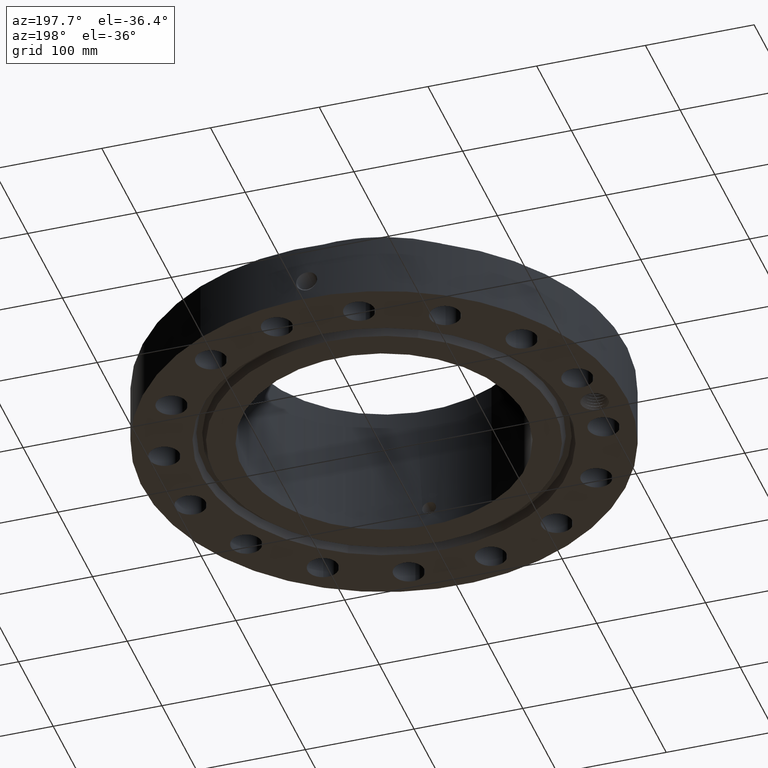
[diagram: clean part render]
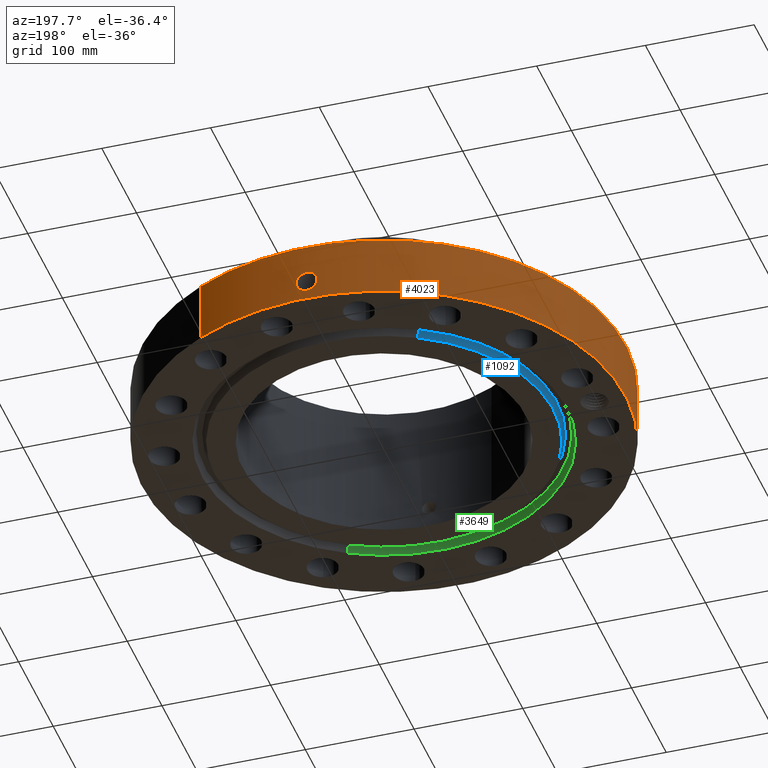
[diagram: same view with three faces highlighted in distinct colors, each labeled with its STEP entity id]
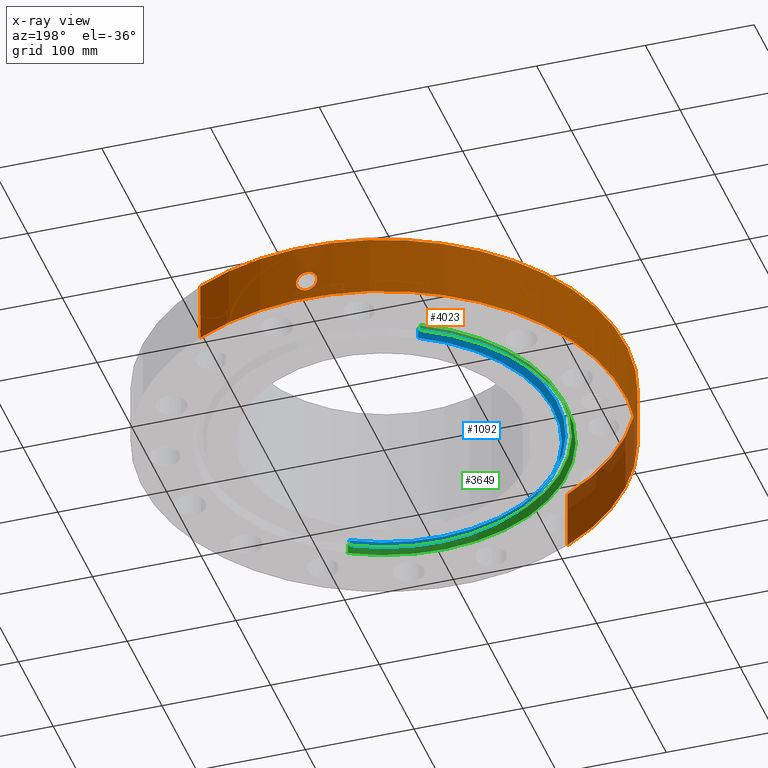
[diagram: x-ray of the same camera — body ghosted, the three highlighted faces saturated]
A machine part, auxiliary view with three faces highlighted in distinct colors.
The next image is the same camera in x-ray (body ghosted, the three faces saturated) — at least one of them is partly hidden behind the body in this view.
Their STEP definitions:

[orange] entity #4023 — the highlighted cylindrical surface (partial cylindrical patch) has radius 222.25 mm, axis along (0, 0, -1).
#2927=AXIS2_PLACEMENT_3D('Circle Axis2P3D',#2925,#2926,$) ;
#3909=AXIS2_PLACEMENT_3D('Cylinder Axis2P3D',#3906,#3907,#3908) ;
#3913=AXIS2_PLACEMENT_3D('Circle Axis2P3D',#3911,#3912,$) ;
#2920=CARTESIAN_POINT('Vertex',(4.1949734628,7.67884741657,2.19300000001)) ;
#2922=CARTESIAN_POINT('Vertex',(-4.1949734628,-7.67884741657,2.19300000001)) ;
#2925=CARTESIAN_POINT('Axis2P3D Location',(0.,0.,2.19300000001)) ;
#3906=CARTESIAN_POINT('Axis2P3D Location',(0.,0.,2.46650000001)) ;
#3911=CARTESIAN_POINT('Axis2P3D Location',(0.,0.,8.39223703654E-016)) ;
#3915=CARTESIAN_POINT('Vertex',(-4.1949734628,-7.67884741657,5.59482469102E-016)) ;
#3917=CARTESIAN_POINT('Vertex',(4.1949734628,7.67884741657,5.59482469102E-016)) ;
#3920=CARTESIAN_POINT('Line Origine',(-4.1949734628,-7.67884741657,1.0965)) ;
#3925=CARTESIAN_POINT('Line Origine',(4.1949734628,7.67884741657,1.0965)) ;
#3937=CARTESIAN_POINT('Control Point',(-0.058108211345,8.74980705138,1.09931275918)) ;
#3938=CARTESIAN_POINT('Control Point',(-0.0391507428815,8.74993294954,1.10247040508)) ;
#3939=CARTESIAN_POINT('Control Point',(-0.0199351377869,8.7499983976,1.10407954749)) ;
#3940=CARTESIAN_POINT('Control Point',(-0.000716211241924,8.74999997072,1.10411849893)) ;
#3941=CARTESIAN_POINT('Vertex',(-0.058094103343,8.74980740847,1.09931539446)) ;
#3943=CARTESIAN_POINT('Vertex',(-0.000716087015016,8.74999997073,1.10411850938)) ;
#3947=CARTESIAN_POINT('Control Point',(-0.0580939951518,8.74980714578,1.09931480802)) ;
#3948=CARTESIAN_POINT('Control Point',(-0.0974875527277,8.74954559383,1.09448302669)) ;
#3949=CARTESIAN_POINT('Control Point',(-0.136129795783,8.74901297423,1.08246986474)) ;
#3950=CARTESIAN_POINT('Control Point',(-0.171610206376,8.74831697744,1.06416185771)) ;
#3951=CARTESIAN_POINT('Vertex',(-0.171610206376,8.74831697744,1.06416185771)) ;
#3955=CARTESIAN_POINT('Control Point',(-0.0302669250486,8.74994765206,0.341133857002)) ;
#3956=CARTESIAN_POINT('Control Point',(-0.0865126194278,8.7497530927,0.348286208239)) ;
#3957=CARTESIAN_POINT('Control Point',(-0.141163769287,8.74911210118,0.365899658823)) ;
#3958=CARTESIAN_POINT('Control Point',(-0.191479456612,8.74808366168,0.393467512369)) ;
#3959=CARTESIAN_POINT('Control Point',(-0.264585195593,8.74612690955,0.452883889332)) ;
#3960=CARTESIAN_POINT('Control Point',(-0.31652846254,8.74430507499,0.529208859659)) ;
#3961=CARTESIAN_POINT('Control Point',(-0.33358370049,8.74365536444,0.561880812788)) ;
#3962=CARTESIAN_POINT('Control Point',(-0.368975035559,8.7422470228,0.654035266205)) ;
#3963=CARTESIAN_POINT('Control Point',(-0.375098719296,8.74194353704,0.752677612261)) ;
#3964=CARTESIAN_POINT('Control Point',(-0.366946086277,8.74231502189,0.81432650908)) ;
#3965=CARTESIAN_POINT('Control Point',(-0.333642995775,8.74374181876,0.912287176442)) ;
#3966=CARTESIAN_POINT('Control Point',(-0.270966480204,8.74586349126,0.992724215462)) ;
#3967=CARTESIAN_POINT('Control Point',(-0.241231379484,8.74676440465,1.02147019833)) ;
#3968=CARTESIAN_POINT('Control Point',(-0.207766158971,8.74760772896,1.04550526857)) ;
#3969=CARTESIAN_POINT('Control Point',(-0.171610206376,8.74831697744,1.06416185771)) ;
#3970=CARTESIAN_POINT('Vertex',(-0.0302669250486,8.74994765206,0.341133857002)) ;
#3974=CARTESIAN_POINT('Control Point',(-0.0302669250486,8.74994765206,0.341133857002)) ;
#3975=CARTESIAN_POINT('Control Point',(-0.0201721120829,8.74998257101,0.340866678134)) ;
#3976=CARTESIAN_POINT('Control Point',(-0.0100722667832,8.75000000318,0.340947102439)) ;
#3977=CARTESIAN_POINT('Control Point',(2.72878355316E-006,8.75000000003,0.341374667804)) ;
#3978=CARTESIAN_POINT('Vertex',(2.72878353736E-006,8.75000000003,0.341374667804)) ;
#3982=CARTESIAN_POINT('Control Point',(0.19328241765,8.74786499139,0.39620888473)) ;
#3983=CARTESIAN_POINT('Control Point',(0.149259962967,8.74883765918,0.371336697881)) ;
#3984=CARTESIAN_POINT('Control Point',(0.101168996965,8.74960564166,0.353535751557)) ;
#3985=CARTESIAN_POINT('Control Point',(0.0508246752608,8.74999998419,0.34353146512)) ;
#3986=CARTESIAN_POINT('Control Point',(2.72878350651E-006,8.75000000003,0.341374667805)) ;
#3987=CARTESIAN_POINT('Vertex',(0.19328241765,8.74786499139,0.39620888473)) ;
#3991=CARTESIAN_POINT('Control Point',(0.19328241765,8.74786499139,0.39620888473)) ;
#3992=CARTESIAN_POINT('Control Point',(0.222320013093,8.74722341123,0.412614795616)) ;
#3993=CARTESIAN_POINT('Control Point',(0.249702833051,8.74649785024,0.431904366732)) ;
#3994=CARTESIAN_POINT('Control Point',(0.275025863018,8.74572454017,0.45390777691)) ;
#3995=CARTESIAN_POINT('Control Point',(0.341959797282,8.74345929158,0.525550661269)) ;
#3996=CARTESIAN_POINT('Control Point',(0.384721449491,8.74158000139,0.615221601559)) ;
#3997=CARTESIAN_POINT('Control Point',(0.399824067785,8.74084549811,0.679596595853)) ;
#3998=CARTESIAN_POINT('Control Point',(0.400741251066,8.74084616897,0.793900913658)) ;
#3999=CARTESIAN_POINT('Control Point',(0.360682759963,8.74259093656,0.898628588562)) ;
#4000=CARTESIAN_POINT('Control Point',(0.336434934745,8.74359787649,0.940095914418)) ;
#4001=CARTESIAN_POINT('Control Point',(0.267541262055,8.74613174516,1.02398894546)) ;
#4002=CARTESIAN_POINT('Control Point',(0.174601905288,8.74851033423,1.07870829018)) ;
#4003=CARTESIAN_POINT('Control Point',(0.11742775766,8.74951483366,1.09858358612)) ;
#4004=CARTESIAN_POINT('Control Point',(0.0582716037326,8.75000017228,1.10701111984)) ;
#4005=CARTESIAN_POINT('Control Point',(-2.5857935541E-005,8.75,1.10415298432)) ;
#4006=CARTESIAN_POINT('Vertex',(-2.58579355373E-005,8.75,1.10415298432)) ;
#4010=CARTESIAN_POINT('Control Point',(-0.000716087004832,8.74999997073,1.10411850936)) ;
#4011=CARTESIAN_POINT('Control Point',(-0.000370996506643,8.74999999898,1.1041360633)) ;
#4012=CARTESIAN_POINT('Control Point',(-2.58579413376E-005,8.75,1.10415298432)) ;
#2926=DIRECTION('Axis2P3D Direction',(0.,0.,-0.0393700787402)) ;
#3907=DIRECTION('Axis2P3D Direction',(0.,0.,-0.0393700787402)) ;
#3908=DIRECTION('Axis2P3D XDirection',(0.0188750212049,0.0345504945626,0.)) ;
#3912=DIRECTION('Axis2P3D Direction',(0.,0.,-0.0393700787402)) ;
#3921=DIRECTION('Vector Direction',(0.,0.,-0.0393700787402)) ;
#3926=DIRECTION('Vector Direction',(0.,0.,-0.0393700787402)) ;
#3922=VECTOR('Line Direction',#3921,0.0393700787402) ;
#3927=VECTOR('Line Direction',#3926,0.0393700787402) ;
#3931=ORIENTED_EDGE('',*,*,#3919,.F.) ;
#3932=ORIENTED_EDGE('',*,*,#3924,.T.) ;
#3933=ORIENTED_EDGE('',*,*,#2929,.T.) ;
#3934=ORIENTED_EDGE('',*,*,#3929,.F.) ;
#4015=ORIENTED_EDGE('',*,*,#3945,.F.) ;
#4016=ORIENTED_EDGE('',*,*,#3953,.T.) ;
#4017=ORIENTED_EDGE('',*,*,#3972,.F.) ;
#4018=ORIENTED_EDGE('',*,*,#3980,.T.) ;
#4019=ORIENTED_EDGE('',*,*,#3989,.F.) ;
#4020=ORIENTED_EDGE('',*,*,#4008,.T.) ;
#4021=ORIENTED_EDGE('',*,*,#4013,.F.) ;
#4022=FACE_BOUND('',#4014,.T.) ;
#4023=ADVANCED_FACE('PartBody',(#3935,#4022),#3910,.T.) ;
#3936=B_SPLINE_CURVE_WITH_KNOTS('',3,(#3937,#3938,#3939,#3940),.UNSPECIFIED.,.F.,.U.,(4,4),(4.38919203658,6.52135752017),.UNSPECIFIED.) ;
#3946=B_SPLINE_CURVE_WITH_KNOTS('',3,(#3947,#3948,#3949,#3950),.UNSPECIFIED.,.F.,.U.,(4,4),(0.,4.4594518444),.UNSPECIFIED.) ;
#3954=B_SPLINE_CURVE_WITH_KNOTS('',5,(#3955,#3956,#3957,#3958,#3959,#3960,#3961,#3962,#3963,#3964,#3965,#3966,#3967,#3968,#3969),.UNSPECIFIED.,.F.,.U.,(6,3,3,3,6),(0.,9.85389436165,16.4310832901,27.5941657904,35.1680977725),.UNSPECIFIED.) ;
#3973=B_SPLINE_CURVE_WITH_KNOTS('',3,(#3974,#3975,#3976,#3977),.UNSPECIFIED.,.F.,.U.,(4,4),(0.,1.05295486204),.UNSPECIFIED.) ;
#3981=B_SPLINE_CURVE_WITH_KNOTS('',4,(#3982,#3983,#3984,#3985,#3986),.UNSPECIFIED.,.F.,.U.,(5,5),(0.,7.08198369672),.UNSPECIFIED.) ;
#3990=B_SPLINE_CURVE_WITH_KNOTS('',5,(#3991,#3992,#3993,#3994,#3995,#3996,#3997,#3998,#3999,#4000,#4001,#4002,#4003,#4004,#4005),.UNSPECIFIED.,.F.,.U.,(6,3,3,3,6),(0.,5.83917278101,17.1007667638,25.5637802496,36.4607847204),.UNSPECIFIED.) ;
#4009=B_SPLINE_CURVE_WITH_KNOTS('',2,(#4010,#4011,#4012),.UNSPECIFIED.,.F.,.U.,(3,3),(1.04630914316,1.07211456638),.UNSPECIFIED.) ;
#2928=CIRCLE('generated circle',#2927,8.75000000003) ;
#3914=CIRCLE('generated circle',#3913,8.75000000003) ;
#3910=CYLINDRICAL_SURFACE('generated cylinder',#3909,8.75000000003) ;
#2929=EDGE_CURVE('',#2923,#2921,#2928,.T.) ;
#3919=EDGE_CURVE('',#3916,#3918,#3914,.T.) ;
#3924=EDGE_CURVE('',#3916,#2923,#3923,.F.) ;
#3929=EDGE_CURVE('',#3918,#2921,#3928,.F.) ;
#3945=EDGE_CURVE('',#3942,#3944,#3936,.T.) ;
#3953=EDGE_CURVE('',#3942,#3952,#3946,.T.) ;
#3972=EDGE_CURVE('',#3971,#3952,#3954,.T.) ;
#3980=EDGE_CURVE('',#3971,#3979,#3973,.T.) ;
#3989=EDGE_CURVE('',#3988,#3979,#3981,.T.) ;
#4008=EDGE_CURVE('',#3988,#4007,#3990,.T.) ;
#4013=EDGE_CURVE('',#3944,#4007,#4009,.T.) ;
#3930=EDGE_LOOP('',(#3931,#3932,#3933,#3934)) ;
#4014=EDGE_LOOP('',(#4015,#4016,#4017,#4018,#4019,#4020,#4021)) ;
#3935=FACE_OUTER_BOUND('',#3930,.T.) ;
#3923=LINE('Line',#3920,#3922) ;
#3928=LINE('Line',#3925,#3927) ;
#2921=VERTEX_POINT('',#2920) ;
#2923=VERTEX_POINT('',#2922) ;
#3916=VERTEX_POINT('',#3915) ;
#3918=VERTEX_POINT('',#3917) ;
#3942=VERTEX_POINT('',#3941) ;
#3944=VERTEX_POINT('',#3943) ;
#3952=VERTEX_POINT('',#3951) ;
#3971=VERTEX_POINT('',#3970) ;
#3979=VERTEX_POINT('',#3978) ;
#3988=VERTEX_POINT('',#3987) ;
#4007=VERTEX_POINT('',#4006) ;

[blue] entity #1092 — the highlighted conical surface has half-angle 23 deg.
#611=AXIS2_PLACEMENT_3D('Circle Axis2P3D',#609,#610,$) ;
#1053=AXIS2_PLACEMENT_3D('Cone Axis2P3D',#1050,#1051,#1052) ;
#1083=AXIS2_PLACEMENT_3D('Circle Axis2P3D',#1081,#1082,$) ;
#604=CARTESIAN_POINT('Vertex',(-2.94391251981,5.38879572131,-1.48612530855E-016)) ;
#606=CARTESIAN_POINT('Vertex',(2.94391251981,-5.38879572131,0.)) ;
#609=CARTESIAN_POINT('Axis2P3D Location',(-1.1189649382E-015,0.,0.)) ;
#1050=CARTESIAN_POINT('Axis2P3D Location',(0.,0.,-0.0600000000002)) ;
#1055=CARTESIAN_POINT('Line Origine',(-2.97383908161,5.44357592523,0.147056332492)) ;
#1059=CARTESIAN_POINT('Vertex',(-3.0037656434,5.49835612915,0.294112664984)) ;
#1066=CARTESIAN_POINT('Vertex',(3.0037656434,-5.49835612915,0.294112664984)) ;
#1069=CARTESIAN_POINT('Line Origine',(2.97383908161,-5.44357592523,0.147056332492)) ;
#1081=CARTESIAN_POINT('Axis2P3D Location',(0.,0.,0.294112664984)) ;
#610=DIRECTION('Axis2P3D Direction',(0.,0.,-0.0393700787402)) ;
#1051=DIRECTION('Axis2P3D Direction',(0.,0.,0.0393700787402)) ;
#1052=DIRECTION('Axis2P3D XDirection',(-0.0188750212049,0.0345504945626,0.)) ;
#1056=DIRECTION('Vector Direction',(-0.00737505833565,0.0134999537303,0.0362403485611)) ;
#1070=DIRECTION('Vector Direction',(0.00737505833565,-0.0134999537303,0.0362403485611)) ;
#1082=DIRECTION('Axis2P3D Direction',(0.,0.,0.0393700787402)) ;
#1057=VECTOR('Line Direction',#1056,0.0393700787402) ;
#1071=VECTOR('Line Direction',#1070,0.0393700787402) ;
#1087=ORIENTED_EDGE('',*,*,#1073,.F.) ;
#1088=ORIENTED_EDGE('',*,*,#1085,.F.) ;
#1089=ORIENTED_EDGE('',*,*,#1061,.T.) ;
#1090=ORIENTED_EDGE('',*,*,#613,.F.) ;
#1092=ADVANCED_FACE('PartBody',(#1091),#1054,.T.) ;
#612=CIRCLE('generated circle',#611,6.14050000002) ;
#1084=CIRCLE('generated circle',#1083,6.26534341944) ;
#1054=CONICAL_SURFACE('Cone',#1053,6.11503151105,0.401425727959) ;
#613=EDGE_CURVE('',#607,#605,#612,.T.) ;
#1061=EDGE_CURVE('',#1060,#605,#1058,.F.) ;
#1073=EDGE_CURVE('',#1067,#607,#1072,.F.) ;
#1085=EDGE_CURVE('',#1060,#1067,#1084,.T.) ;
#1086=EDGE_LOOP('',(#1087,#1088,#1089,#1090)) ;
#1091=FACE_OUTER_BOUND('',#1086,.T.) ;
#1058=LINE('Line',#1055,#1057) ;
#1072=LINE('Line',#1069,#1071) ;
#605=VERTEX_POINT('',#604) ;
#607=VERTEX_POINT('',#606) ;
#1060=VERTEX_POINT('',#1059) ;
#1067=VERTEX_POINT('',#1066) ;

[green] entity #3649 — the highlighted conical surface has half-angle 23 deg.
#2635=AXIS2_PLACEMENT_3D('Circle Axis2P3D',#2633,#2634,$) ;
#3610=AXIS2_PLACEMENT_3D('Cone Axis2P3D',#3607,#3608,#3609) ;
#3640=AXIS2_PLACEMENT_3D('Circle Axis2P3D',#3638,#3639,$) ;
#2611=CARTESIAN_POINT('Vertex',(3.10890997382,-5.69082153499,0.294112664984)) ;
#2613=CARTESIAN_POINT('Vertex',(-3.10890997382,5.69082153499,0.294112664984)) ;
#2633=CARTESIAN_POINT('Axis2P3D Location',(0.,0.,0.294112664984)) ;
#3607=CARTESIAN_POINT('Axis2P3D Location',(0.,0.,0.294112664984)) ;
#3616=CARTESIAN_POINT('Vertex',(-3.16876309742,5.80038194284,3.49676543189E-017)) ;
#3618=CARTESIAN_POINT('Vertex',(3.16876309742,-5.80038194284,3.49676543189E-017)) ;
#3621=CARTESIAN_POINT('Line Origine',(3.13883653562,-5.74560173892,0.147056332492)) ;
#3626=CARTESIAN_POINT('Line Origine',(-3.13883653562,5.74560173892,0.147056332492)) ;
#3638=CARTESIAN_POINT('Axis2P3D Location',(0.,0.,3.49676543189E-017)) ;
#2634=DIRECTION('Axis2P3D Direction',(0.,0.,0.0393700787402)) ;
#3608=DIRECTION('Axis2P3D Direction',(-0.,-0.,-0.0393700787402)) ;
#3609=DIRECTION('Axis2P3D XDirection',(0.0188750212049,-0.0345504945626,0.)) ;
#3622=DIRECTION('Vector Direction',(0.00737505833565,-0.0134999537303,-0.0362403485611)) ;
#3627=DIRECTION('Vector Direction',(-0.00737505833565,0.0134999537303,-0.0362403485611)) ;
#3639=DIRECTION('Axis2P3D Direction',(0.,0.,-0.0393700787402)) ;
#3623=VECTOR('Line Direction',#3622,0.0393700787402) ;
#3628=VECTOR('Line Direction',#3627,0.0393700787402) ;
#3644=ORIENTED_EDGE('',*,*,#3642,.T.) ;
#3645=ORIENTED_EDGE('',*,*,#3630,.T.) ;
#3646=ORIENTED_EDGE('',*,*,#2637,.T.) ;
#3647=ORIENTED_EDGE('',*,*,#3625,.F.) ;
#3649=ADVANCED_FACE('PartBody',(#3648),#3611,.F.) ;
#2636=CIRCLE('generated circle',#2635,6.48465658061) ;
#3641=CIRCLE('generated circle',#3640,6.60950000003) ;
#3611=CONICAL_SURFACE('Cone',#3610,6.48465658061,0.401425727959) ;
#2637=EDGE_CURVE('',#2614,#2612,#2636,.T.) ;
#3625=EDGE_CURVE('',#3619,#2612,#3624,.F.) ;
#3630=EDGE_CURVE('',#3617,#2614,#3629,.F.) ;
#3642=EDGE_CURVE('',#3619,#3617,#3641,.T.) ;
#3643=EDGE_LOOP('',(#3644,#3645,#3646,#3647)) ;
#3648=FACE_OUTER_BOUND('',#3643,.T.) ;
#3624=LINE('Line',#3621,#3623) ;
#3629=LINE('Line',#3626,#3628) ;
#2612=VERTEX_POINT('',#2611) ;
#2614=VERTEX_POINT('',#2613) ;
#3617=VERTEX_POINT('',#3616) ;
#3619=VERTEX_POINT('',#3618) ;